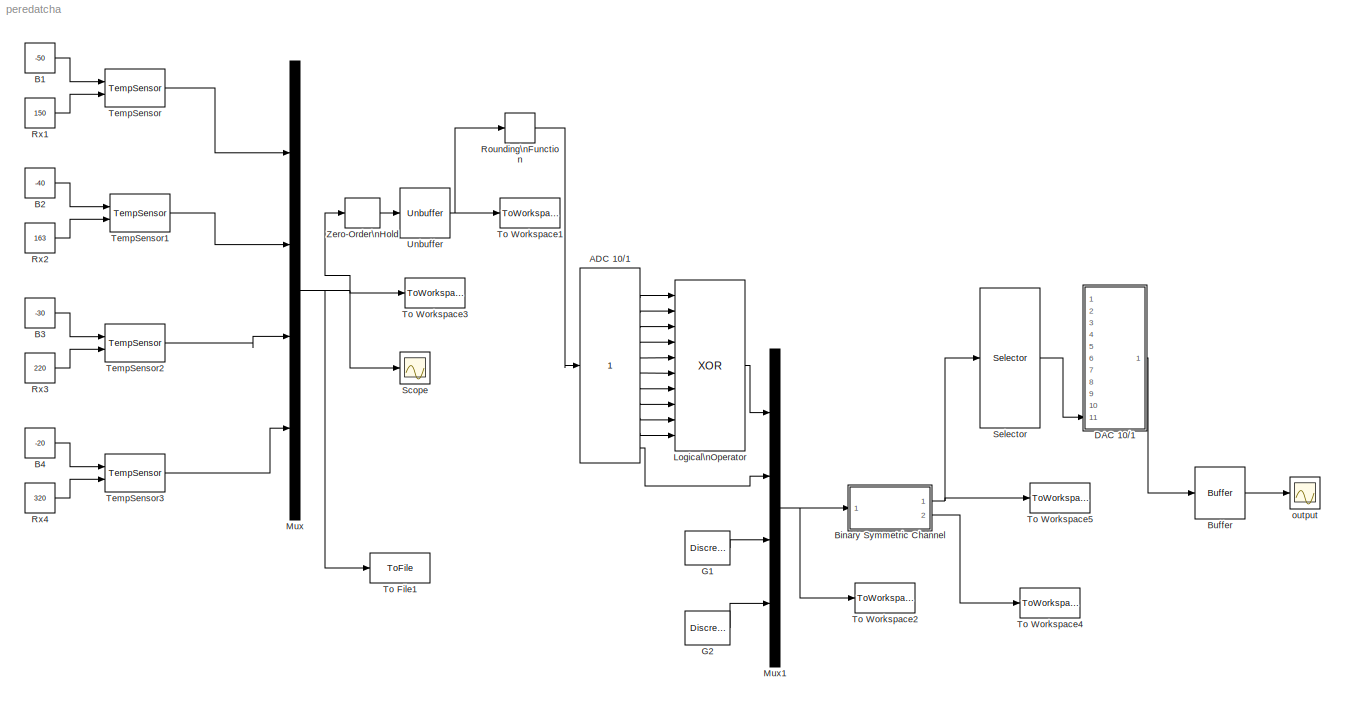
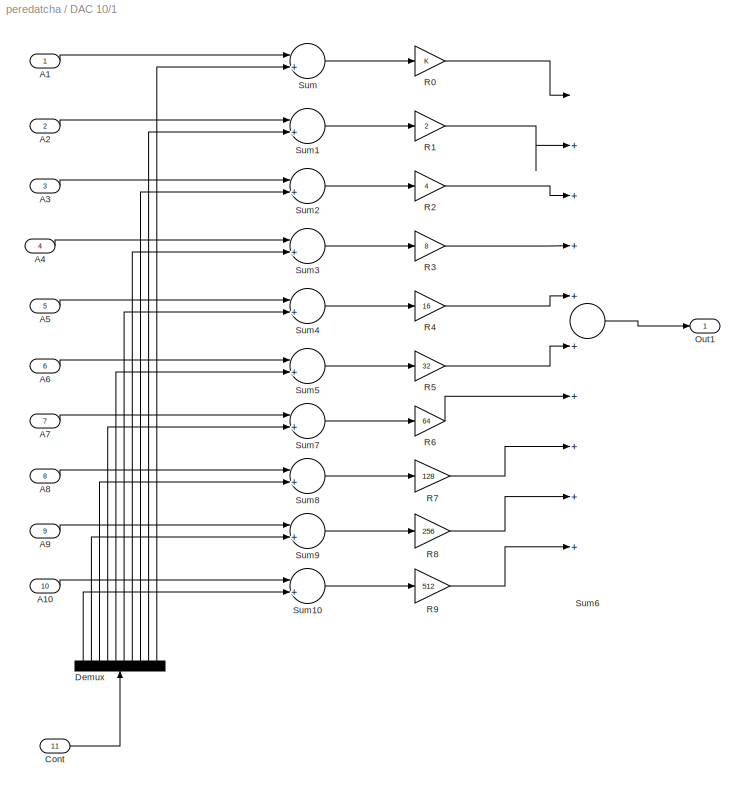
MODEL peredatcha
KIND model
BLOCK [Reference] ADC 10//1  REF=KP/ADC 10//1
  Ports = [1, 12]
  SID = 44
  SourceBlock = KP/ADC 10//1
  SourceType = SubSystem
BLOCK [Constant] B1
  SID = 2
  SampleTime = 0
  Value = -50
BLOCK [Constant] B2
  SID = 3
  SampleTime = 0
  Value = -40
BLOCK [Constant] B3
  SID = 4
  SampleTime = 0
  Value = -30
BLOCK [Constant] B4
  SID = 5
  SampleTime = 0
  Value = -20
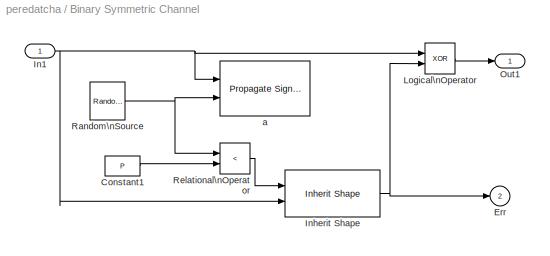
BLOCK [SubSystem] Binary Symmetric Channel
  AncestorBlock = commchan2/Binary Symmetric\nChannel
  Ports = [1, 2]
  RequestExecContextInheritance = off
  SID = 6
  Variant = off
BLOCK [Constant] Binary Symmetric Channel/Constant1
  SID = 6:2
  Value = P
BLOCK [Outport] Binary Symmetric Channel/Err
  IconDisplay = Port number
  Port = 2
  SID = 6:9
BLOCK [Inport] Binary Symmetric Channel/In1
  IconDisplay = Port number
  SID = 6:1
BLOCK [Reference] Binary Symmetric Channel/Inherit Shape  REF=commblksprivate/Inherit Shape
  Ports = [2, 1]
  SID = 6:3
  SourceBlock = commblksprivate/Inherit Shape
  SourceType = Inherit Shape
BLOCK [Logic] Binary Symmetric Channel/Logical\nOperator
  Operator = XOR
  OutDataTypeStr = float('double')
  Ports = [2, 1]
  SID = 6:4
BLOCK [Outport] Binary Symmetric Channel/Out1
  IconDisplay = Port number
  SID = 6:8
BLOCK [Reference] Binary Symmetric Channel/Random\nSource  REF=dspsrcs4/Random\nSource
  CltLength = 12
  DataType = Double
  Diagnostics = AllowInheritedTsInSrc
  IsInherit = on
  MaxVal = 1
  MeanVal = 0
  MinVal = 0
  NormMethod = Ziggurat
  OutComplex = Real
  OutputFrames = on
  Ports = [0, 1]
  RepMode = Specify seed
  SID = 6:5
  SampFrame = 1
  SampMode = Discrete
  SampTime = 1
  SourceBlock = dspsrcs4/Random\nSource
  SourceType = Random Source
  SrcType = Uniform
  VarVal = 1
  rawSeed = s
BLOCK [RelationalOperator] Binary Symmetric Channel/Relational\nOperator
  Operator = <
  OutDataTypeStr = float('double')
  Ports = [2, 1]
  SID = 6:6
BLOCK [Reference] Binary Symmetric Channel/a  REF=commblksprivate/Propagate Signal\nAttributes
  Ports = [2]
  SID = 6:7
  SourceBlock = commblksprivate/Propagate Signal\nAttributes
  SourceType = Propagate signal attributes
BLOCK [Buffer] Buffer
  N = 4
  OutputFrames = off
  SID = 41
  TreatMby1Signals = One channel
BLOCK [SubSystem] DAC 10//1
  AncestorBlock = KP/DAC 10//1
  Ports = [11, 1]
  RequestExecContextInheritance = off
  SID = 49
  Variant = off
BLOCK [Inport] DAC 10//1/A1
  IconDisplay = Port number
  SID = 49:253
BLOCK [Inport] DAC 10//1/A10
  IconDisplay = Port number
  Port = 10
  SID = 49:262
BLOCK [Inport] DAC 10//1/A2
  IconDisplay = Port number
  Port = 2
  SID = 49:254
BLOCK [Inport] DAC 10//1/A3
  IconDisplay = Port number
  Port = 3
  SID = 49:255
BLOCK [Inport] DAC 10//1/A4
  IconDisplay = Port number
  Port = 4
  SID = 49:256
BLOCK [Inport] DAC 10//1/A5
  IconDisplay = Port number
  Port = 5
  SID = 49:257
BLOCK [Inport] DAC 10//1/A6
  IconDisplay = Port number
  Port = 6
  SID = 49:258
BLOCK [Inport] DAC 10//1/A7
  IconDisplay = Port number
  Port = 7
  SID = 49:259
BLOCK [Inport] DAC 10//1/A8
  IconDisplay = Port number
  Port = 8
  SID = 49:260
BLOCK [Inport] DAC 10//1/A9
  IconDisplay = Port number
  Port = 9
  SID = 49:261
BLOCK [Inport] DAC 10//1/Cont
  IconDisplay = Port number
  Port = 11
  SID = 49:263
BLOCK [Demux] DAC 10//1/Demux
  Outputs = 10
  Ports = [1, 10]
  SID = 49:229
BLOCK [Outport] DAC 10//1/Out1
  IconDisplay = Port number
  InitialOutput = 0
  SID = 49:264
BLOCK [Gain] DAC 10//1/R0
  SID = 49:230
BLOCK [Gain] DAC 10//1/R1
  Gain = 2
  SID = 49:231
BLOCK [Gain] DAC 10//1/R2
  Gain = 4
  SID = 49:232
BLOCK [Gain] DAC 10//1/R3
  Gain = 8
  SID = 49:233
BLOCK [Gain] DAC 10//1/R4
  Gain = 16
  SID = 49:234
BLOCK [Gain] DAC 10//1/R5
  Gain = 32
  SID = 49:235
BLOCK [Gain] DAC 10//1/R6
  Gain = 64
  SID = 49:236
BLOCK [Gain] DAC 10//1/R7
  Gain = 128
  SID = 49:237
BLOCK [Gain] DAC 10//1/R8
  Gain = 256
  SID = 49:238
BLOCK [Gain] DAC 10//1/R9
  Gain = 512
  SID = 49:239
BLOCK [Sum] DAC 10//1/Sum
  Inputs = |++
  Ports = [2, 1]
  SID = 49:240
BLOCK [Sum] DAC 10//1/Sum1
  Inputs = |++
  Ports = [2, 1]
  SID = 49:241
BLOCK [Sum] DAC 10//1/Sum10
  Inputs = |++
  Ports = [2, 1]
  SID = 49:242
BLOCK [Sum] DAC 10//1/Sum2
  Inputs = |++
  Ports = [2, 1]
  SID = 49:243
BLOCK [Sum] DAC 10//1/Sum3
  Inputs = |++
  Ports = [2, 1]
  SID = 49:244
BLOCK [Sum] DAC 10//1/Sum4
  Inputs = |++
  Ports = [2, 1]
  SID = 49:245
BLOCK [Sum] DAC 10//1/Sum5
  Inputs = |++
  Ports = [2, 1]
  SID = 49:246
BLOCK [Sum] DAC 10//1/Sum6
  Inputs = |++++++++++
  Ports = [10, 1]
  SID = 49:247
BLOCK [Sum] DAC 10//1/Sum7
  Inputs = |++
  Ports = [2, 1]
  SID = 49:248
BLOCK [Sum] DAC 10//1/Sum8
  Inputs = |++
  Ports = [2, 1]
  SID = 49:249
BLOCK [Sum] DAC 10//1/Sum9
  Inputs = |++
  Ports = [2, 1]
  SID = 49:250
BLOCK [DiscretePulseGenerator] G1
  PhaseDelay = 1
  Ports = [0, 1]
  SID = 9
BLOCK [DiscretePulseGenerator] G2
  Period = 4
  PhaseDelay = 2
  Ports = [0, 1]
  PulseWidth = 2
  SID = 10
BLOCK [Logic] Logical\nOperator
  Inputs = 10
  Operator = XOR
  Ports = [10, 1]
  SID = 11
BLOCK [Mux] Mux
  DisplayOption = bar
  Ports = [4, 1]
  SID = 12
BLOCK [Mux] Mux1
  DisplayOption = bar
  Ports = [4, 1]
  SID = 13
BLOCK [Rounding] Rounding\nFunction
  Operator = round
  SID = 14
BLOCK [Constant] Rx1
  SID = 15
  SampleTime = 0
  Value = 150
BLOCK [Constant] Rx2
  SID = 16
  SampleTime = 0
  Value = 163
BLOCK [Constant] Rx3
  SID = 17
  SampleTime = 0
  Value = 220
BLOCK [Constant] Rx4
  SID = 18
  SampleTime = 0
  Value = 320
BLOCK [Scope] Scope
  Ports = [1]
  SID = 19
  ScopeSpecificationString = Simulink.scopes.TimeScopeBlockCfg('CurrentConfiguration', extmgr.ConfigurationSet(extmgr.Configuration('Core','General UI',true),extmgr.Configuration('Core','Source UI',true),extmgr.Configuration('Sources','WiredSimulink',true,'DataLoggingSaveFormat','StructureWithTime','DataLoggingLimitDataPoints',true,'DataLoggingDecimation','1','DataLoggingDecimateData',true),extmgr.Configuration('Visuals','Tim...<+1683ch>
BLOCK [Selector] Selector
  IndexOptions = Index vector (dialog)
  Indices = [1 2 3 4 5 6 7 8 9 10]
  InputPortWidth = 13
  OutputSizes = 1
  Ports = [1, 1]
  SID = 20
BLOCK [Reference] TempSensor  REF=KP/TempSensor
  Ports = [2, 1]
  SID = 45
  SourceBlock = KP/TempSensor
  SourceType = SubSystem
BLOCK [Reference] TempSensor1  REF=KP/TempSensor
  Ports = [2, 1]
  SID = 46
  SourceBlock = KP/TempSensor
  SourceType = SubSystem
BLOCK [Reference] TempSensor2  REF=KP/TempSensor
  Ports = [2, 1]
  SID = 47
  SourceBlock = KP/TempSensor
  SourceType = SubSystem
BLOCK [Reference] TempSensor3  REF=KP/TempSensor
  Ports = [2, 1]
  SID = 48
  SourceBlock = KP/TempSensor
  SourceType = SubSystem
BLOCK [ToFile] To File1
  Filename = datchicki.mat
  MatrixName = datchiki
  Ports = [1]
  SID = 26
BLOCK [ToWorkspace] To Workspace1
  MaxDataPoints = inf
  Ports = [1]
  SID = 28
  SampleTime = -1
  VariableName = unbuf
BLOCK [ToWorkspace] To Workspace2
  MaxDataPoints = inf
  Ports = [1]
  SID = 29
  SampleTime = -1
  VariableName = bline
BLOCK [ToWorkspace] To Workspace3
  MaxDataPoints = inf
  Ports = [1]
  SID = 54
  SampleTime = -1
  VariableName = prebuf
BLOCK [ToWorkspace] To Workspace4
  MaxDataPoints = inf
  Ports = [1]
  SID = 55
  SampleTime = -1
  VariableName = error
BLOCK [ToWorkspace] To Workspace5
  MaxDataPoints = inf
  Ports = [1]
  SID = 56
  SampleTime = -1
  VariableName = line
BLOCK [Unbuffer] Unbuffer
  Ports = [1, 1]
  SID = 40
  SampleBasedProcessing = Same as frame based
  ic = 4
BLOCK [ZeroOrderHold] Zero-Order\nHold
  SID = 43
BLOCK [Scope] output
  Ports = [1]
  SID = 33
  ScopeSpecificationString = Simulink.scopes.TimeScopeBlockCfg('CurrentConfiguration', extmgr.ConfigurationSet(extmgr.Configuration('Core','General UI',true),extmgr.Configuration('Core','Source UI',true),extmgr.Configuration('Sources','WiredSimulink',true,'DataLoggingVariableName','ScopeData1','DataLoggingSaveFormat','StructureWithTime','DataLoggingLimitDataPoints',true,'DataLoggingDecimation','1','DataLoggingDecimateData',tr...<+1764ch>
LINE ADC 10//1:10 -> Logical\nOperator:9
LINE ADC 10//1:11 -> Logical\nOperator:10
LINE ADC 10//1:12 -> Mux1:2
LINE ADC 10//1:2 -> Logical\nOperator:1
LINE ADC 10//1:3 -> Logical\nOperator:2
LINE ADC 10//1:4 -> Logical\nOperator:3
LINE ADC 10//1:5 -> Logical\nOperator:4
LINE ADC 10//1:6 -> Logical\nOperator:5
LINE ADC 10//1:7 -> Logical\nOperator:6
LINE ADC 10//1:8 -> Logical\nOperator:7
LINE ADC 10//1:9 -> Logical\nOperator:8
LINE B1:1 -> TempSensor:1
LINE B2:1 -> TempSensor1:1
LINE B3:1 -> TempSensor2:1
LINE B4:1 -> TempSensor3:1
LINE Binary Symmetric Channel/Constant1:1 -> Binary Symmetric Channel/Relational\nOperator:2
NET Binary Symmetric Channel/In1:1 -> Binary Symmetric Channel/Inherit Shape:2, Binary Symmetric Channel/Logical\nOperator:1, Binary Symmetric Channel/a:1
NET Binary Symmetric Channel/Inherit Shape:1 -> Binary Symmetric Channel/Err:1, Binary Symmetric Channel/Logical\nOperator:2
LINE Binary Symmetric Channel/Logical\nOperator:1 -> Binary Symmetric Channel/Out1:1
NET Binary Symmetric Channel/Random\nSource:1 -> Binary Symmetric Channel/Relational\nOperator:1, Binary Symmetric Channel/a:2
LINE Binary Symmetric Channel/Relational\nOperator:1 -> Binary Symmetric Channel/Inherit Shape:1
NET Binary Symmetric Channel:1 -> Selector:1, To Workspace5:1
LINE Binary Symmetric Channel:2 -> To Workspace4:1
LINE Buffer:1 -> output:1
LINE DAC 10//1/A10:1 -> DAC 10//1/Sum10:1
LINE DAC 10//1/A1:1 -> DAC 10//1/Sum:1
LINE DAC 10//1/A2:1 -> DAC 10//1/Sum1:1
LINE DAC 10//1/A3:1 -> DAC 10//1/Sum2:1
LINE DAC 10//1/A4:1 -> DAC 10//1/Sum3:1
LINE DAC 10//1/A5:1 -> DAC 10//1/Sum4:1
LINE DAC 10//1/A6:1 -> DAC 10//1/Sum5:1
LINE DAC 10//1/A7:1 -> DAC 10//1/Sum7:1
LINE DAC 10//1/A8:1 -> DAC 10//1/Sum8:1
LINE DAC 10//1/A9:1 -> DAC 10//1/Sum9:1
LINE DAC 10//1/Cont:1 -> DAC 10//1/Demux:1
LINE DAC 10//1/Demux:1 -> DAC 10//1/Sum10:2
LINE DAC 10//1/Demux:10 -> DAC 10//1/Sum:2
LINE DAC 10//1/Demux:2 -> DAC 10//1/Sum9:2
LINE DAC 10//1/Demux:3 -> DAC 10//1/Sum8:2
LINE DAC 10//1/Demux:4 -> DAC 10//1/Sum7:2
LINE DAC 10//1/Demux:5 -> DAC 10//1/Sum5:2
LINE DAC 10//1/Demux:6 -> DAC 10//1/Sum4:2
LINE DAC 10//1/Demux:7 -> DAC 10//1/Sum3:2
LINE DAC 10//1/Demux:8 -> DAC 10//1/Sum2:2
LINE DAC 10//1/Demux:9 -> DAC 10//1/Sum1:2
LINE DAC 10//1/R0:1 -> DAC 10//1/Sum6:1
LINE DAC 10//1/R1:1 -> DAC 10//1/Sum6:2
LINE DAC 10//1/R2:1 -> DAC 10//1/Sum6:3
LINE DAC 10//1/R3:1 -> DAC 10//1/Sum6:4
LINE DAC 10//1/R4:1 -> DAC 10//1/Sum6:5
LINE DAC 10//1/R5:1 -> DAC 10//1/Sum6:6
LINE DAC 10//1/R6:1 -> DAC 10//1/Sum6:7
LINE DAC 10//1/R7:1 -> DAC 10//1/Sum6:8
LINE DAC 10//1/R8:1 -> DAC 10//1/Sum6:9
LINE DAC 10//1/R9:1 -> DAC 10//1/Sum6:10
LINE DAC 10//1/Sum10:1 -> DAC 10//1/R9:1
LINE DAC 10//1/Sum1:1 -> DAC 10//1/R1:1
LINE DAC 10//1/Sum2:1 -> DAC 10//1/R2:1
LINE DAC 10//1/Sum3:1 -> DAC 10//1/R3:1
LINE DAC 10//1/Sum4:1 -> DAC 10//1/R4:1
LINE DAC 10//1/Sum5:1 -> DAC 10//1/R5:1
LINE DAC 10//1/Sum6:1 -> DAC 10//1/Out1:1
LINE DAC 10//1/Sum7:1 -> DAC 10//1/R6:1
LINE DAC 10//1/Sum8:1 -> DAC 10//1/R7:1
LINE DAC 10//1/Sum9:1 -> DAC 10//1/R8:1
LINE DAC 10//1/Sum:1 -> DAC 10//1/R0:1
LINE DAC 10//1:1 -> Buffer:1
LINE G1:1 -> Mux1:3
LINE G2:1 -> Mux1:4
LINE Logical\nOperator:1 -> Mux1:1
NET Mux1:1 -> Binary Symmetric Channel:1, To Workspace2:1
NET Mux:1 -> Scope:1, To File1:1, To Workspace3:1, Zero-Order\nHold:1
LINE Rounding\nFunction:1 -> ADC 10//1:1
LINE Rx1:1 -> TempSensor:2
LINE Rx2:1 -> TempSensor1:2
LINE Rx3:1 -> TempSensor2:2
LINE Rx4:1 -> TempSensor3:2
LINE Selector:1 -> DAC 10//1:11
LINE TempSensor1:1 -> Mux:2
LINE TempSensor2:1 -> Mux:3
LINE TempSensor3:1 -> Mux:4
LINE TempSensor:1 -> Mux:1
NET Unbuffer:1 -> Rounding\nFunction:1, To Workspace1:1
LINE Zero-Order\nHold:1 -> Unbuffer:1
note: NET lines group one-source signal fan-out (src -> all destinations, sorted); 1:1 wires keep LINE
